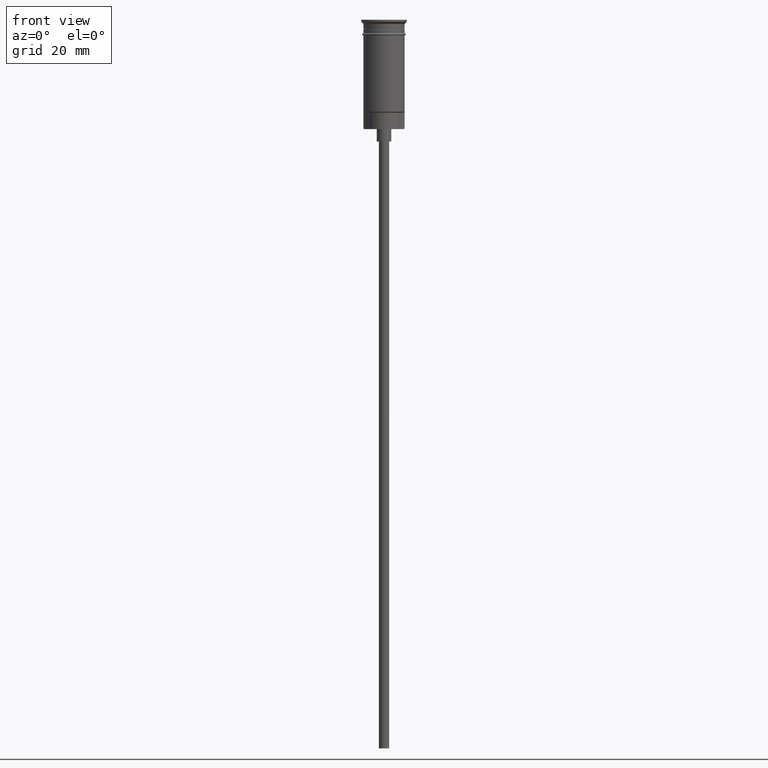
[diagram: clean part render]
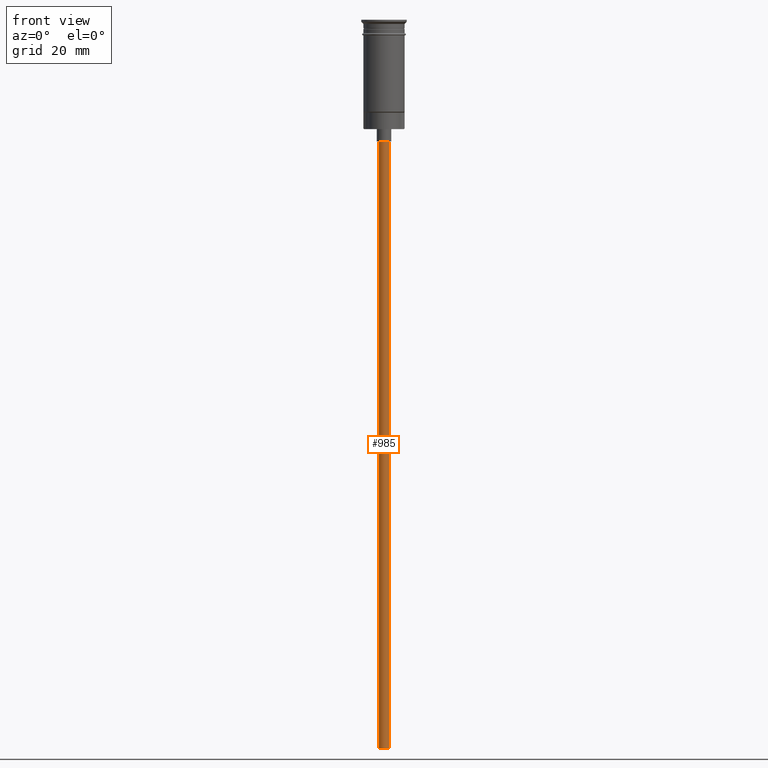
[diagram: same view with one face highlighted and labeled with its STEP entity id]
A machine part, front view. The second image highlights one B-rep face of the part: STEP entity #985.
In plain terms, the highlighted cylindrical surface (edge-blend (fillet) strip) has radius 1.25 mm, axis along (-0, -0, 1).
Its self-contained STEP definition (entity closure, byte-faithful):
#35 = CARTESIAN_POINT ( 'NONE',  ( 0.000000000000000000, 0.000000000000000000, -176.5000000000000000 ) ) ;
#37 = LINE ( 'NONE', #520, #525 ) ;
#84 = AXIS2_PLACEMENT_3D ( 'NONE', #35, #1524, #894 ) ;
#94 = EDGE_CURVE ( 'NONE', #383, #765, #773, .T. ) ;
#120 = CYLINDRICAL_SURFACE ( 'NONE', #1164, 1.250000000000000000 ) ;
#216 = ORIENTED_EDGE ( 'NONE', *, *, #94, .T. ) ;
#258 = VERTEX_POINT ( 'NONE', #1111 ) ;
#372 = ORIENTED_EDGE ( 'NONE', *, *, #677, .T. ) ;
#383 = VERTEX_POINT ( 'NONE', #714 ) ;
#436 = ORIENTED_EDGE ( 'NONE', *, *, #1174, .F. ) ;
#452 = VERTEX_POINT ( 'NONE', #1299 ) ;
#467 = ORIENTED_EDGE ( 'NONE', *, *, #1378, .F. ) ;
#495 = FACE_OUTER_BOUND ( 'NONE', #1024, .T. ) ;
#508 = CIRCLE ( 'NONE', #84, 1.250000000000000000 ) ;
#520 = CARTESIAN_POINT ( 'NONE',  ( 1.250000000000000000, 0.000000000000000000, -176.5000000000000000 ) ) ;
#525 = VECTOR ( 'NONE', #661, 1000.000000000000000 ) ;
#596 = DIRECTION ( 'NONE',  ( -0.000000000000000000, -0.000000000000000000, 1.000000000000000000 ) ) ;
#661 = DIRECTION ( 'NONE',  ( -0.000000000000000000, -0.000000000000000000, 1.000000000000000000 ) ) ;
#677 = EDGE_CURVE ( 'NONE', #258, #383, #37, .T. ) ;
#714 = CARTESIAN_POINT ( 'NONE',  ( 1.250000000000000000, 0.000000000000000000, -29.50000000000000000 ) ) ;
#740 = LINE ( 'NONE', #1216, #1117 ) ;
#765 = VERTEX_POINT ( 'NONE', #919 ) ;
#773 = CIRCLE ( 'NONE', #1318, 1.250000000000000000 ) ;
#894 = DIRECTION ( 'NONE',  ( -1.000000000000000000, 0.000000000000000000, 0.000000000000000000 ) ) ;
#919 = CARTESIAN_POINT ( 'NONE',  ( -1.250000000000000000, 1.530808498934191571E-16, -29.50000000000000000 ) ) ;
#977 = CARTESIAN_POINT ( 'NONE',  ( 0.000000000000000000, 0.000000000000000000, -176.5000000000000000 ) ) ;
#985 = ADVANCED_FACE ( 'NONE', ( #495 ), #120, .T. ) ;
#1024 = EDGE_LOOP ( 'NONE', ( #467, #436, #372, #216 ) ) ;
#1053 = CARTESIAN_POINT ( 'NONE',  ( 0.000000000000000000, 0.000000000000000000, -29.50000000000000000 ) ) ;
#1072 = DIRECTION ( 'NONE',  ( 0.000000000000000000, 0.000000000000000000, -1.000000000000000000 ) ) ;
#1111 = CARTESIAN_POINT ( 'NONE',  ( 1.250000000000000000, 0.000000000000000000, -176.5000000000000000 ) ) ;
#1117 = VECTOR ( 'NONE', #596, 1000.000000000000000 ) ;
#1121 = DIRECTION ( 'NONE',  ( 1.000000000000000000, 0.000000000000000000, 0.000000000000000000 ) ) ;
#1164 = AXIS2_PLACEMENT_3D ( 'NONE', #977, #1335, #1121 ) ;
#1174 = EDGE_CURVE ( 'NONE', #258, #452, #508, .T. ) ;
#1191 = DIRECTION ( 'NONE',  ( -1.000000000000000000, 0.000000000000000000, 0.000000000000000000 ) ) ;
#1216 = CARTESIAN_POINT ( 'NONE',  ( -1.250000000000000000, 1.530808498934191571E-16, -176.5000000000000000 ) ) ;
#1299 = CARTESIAN_POINT ( 'NONE',  ( -1.250000000000000000, 1.530808498934191571E-16, -176.5000000000000000 ) ) ;
#1318 = AXIS2_PLACEMENT_3D ( 'NONE', #1053, #1072, #1191 ) ;
#1335 = DIRECTION ( 'NONE',  ( -0.000000000000000000, -0.000000000000000000, 1.000000000000000000 ) ) ;
#1378 = EDGE_CURVE ( 'NONE', #452, #765, #740, .T. ) ;
#1524 = DIRECTION ( 'NONE',  ( 0.000000000000000000, 0.000000000000000000, -1.000000000000000000 ) ) ;